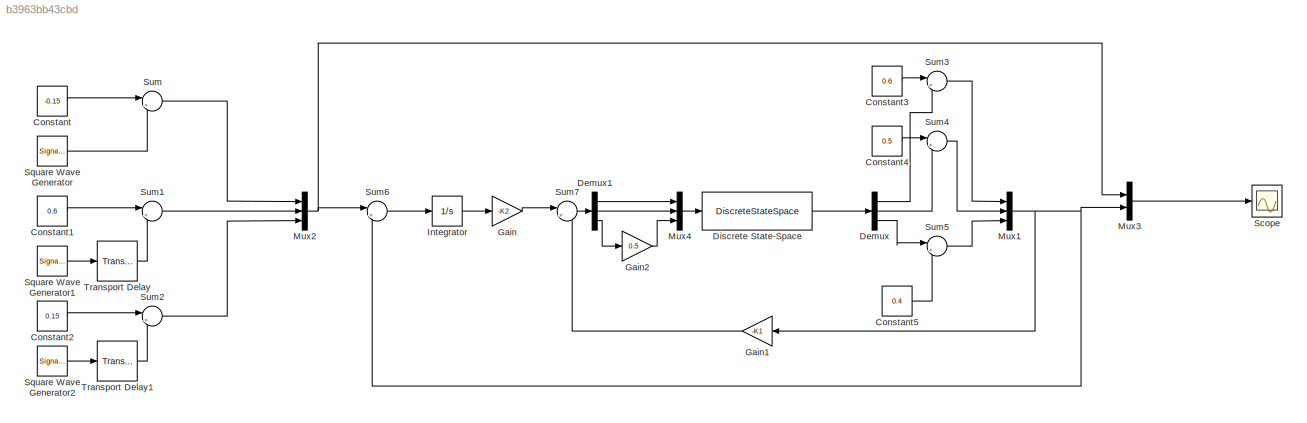
MODEL slx_b3963bb43cbd
KIND model
CONFIG AbsTol = auto
CONFIG EnableMultiTasking = off
CONFIG FixedStep = 0.1
CONFIG MaxStep = auto
CONFIG MinStep = auto
CONFIG RelTol = 1e-3
CONFIG SampleTimeConstraint = Unconstrained
CONFIG Solver = FixedStepAuto
CONFIG SolverName = FixedStepAuto
CONFIG StartTime = 0.0
CONFIG StopTime = 50
BLOCK [Constant] Constant
  Value = -0.15
BLOCK [Constant] Constant1
  Value = 0.6
BLOCK [Constant] Constant2
  Value = 0.15
BLOCK [Constant] Constant3
  Value = 0.6
BLOCK [Constant] Constant4
  Value = 0.5
BLOCK [Constant] Constant5
  Value = 0.4
BLOCK [Demux] Demux
  DisplayOption = bar
  Outputs = 3
  Ports = [1, 3]
BLOCK [Demux] Demux1
  DisplayOption = bar
  Outputs = 3
  Ports = [1, 3]
BLOCK [DiscreteStateSpace] Discrete State-Space
  A = A
  B = B
  C = C
  D = zeros(3,3)
  SampleTime = 0.1
BLOCK [Gain] Gain
  Gain = -K2
  Multiplication = Matrix(K*u)
  OutDataTypeStr = Inherit: Inherit via internal rule
  ParamDataTypeStr = Inherit: Inherit via internal rule
  SaturateOnIntegerOverflow = off
BLOCK [Gain] Gain1
  Gain = -K1
  Multiplication = Matrix(K*u)
  OutDataTypeStr = Inherit: Inherit via internal rule
  ParamDataTypeStr = Inherit: Inherit via internal rule
  SaturateOnIntegerOverflow = off
BLOCK [Gain] Gain2
  Gain = 0.5
  OutDataTypeStr = Inherit: Inherit via internal rule
  ParamDataTypeStr = Inherit: Inherit via internal rule
  SaturateOnIntegerOverflow = off
BLOCK [Integrator] Integrator
  Ports = [1, 1]
BLOCK [Mux] Mux1
  DisplayOption = bar
  Inputs = 3
  Ports = [3, 1]
BLOCK [Mux] Mux2
  DisplayOption = bar
  Inputs = 3
  Ports = [3, 1]
BLOCK [Mux] Mux3
  DisplayOption = bar
  Inputs = 2
  Ports = [2, 1]
BLOCK [Mux] Mux4
  DisplayOption = bar
  Inputs = 3
  Ports = [3, 1]
BLOCK [Scope] Scope
  Floating = off
  NumInputPorts = 1
  Ports = [1]
  ScopeSpecificationString = Simulink.scopes.TimeScopeBlockCfg('CurrentConfiguration', extmgr.ConfigurationSet(extmgr.Configuration('Core','General UI',true),extmgr.Configuration('Core','Source UI',true),extmgr.Configuration('Sources','WiredSimulink',true),extmgr.Configuration('Visuals','Time Domain',true,'SerializedDisplays',{struct('MinYLimReal','-0.3125','MaxYLimReal','0.8125','YLabelReal','','MinYLimMag','0.00000','MaxYLi...<+1451ch>
BLOCK [SignalGenerator] Square Wave Generator
  Amplitude = 0.05
  Frequency = 0.1
  Ports = [0, 1]
  WaveForm = square
BLOCK [SignalGenerator] Square Wave Generator1
  Amplitude = 0.1
  Frequency = 0.1
  Ports = [0, 1]
  WaveForm = square
BLOCK [SignalGenerator] Square Wave Generator2
  Amplitude = 0.05
  Frequency = 0.1
  Ports = [0, 1]
  WaveForm = square
BLOCK [Sum] Sum
  IconShape = round
  InputSameDT = off
  Inputs = |++
  OutDataTypeStr = Inherit: Inherit via internal rule
  Ports = [2, 1]
  SaturateOnIntegerOverflow = off
BLOCK [Sum] Sum1
  IconShape = round
  InputSameDT = off
  Inputs = |++
  OutDataTypeStr = Inherit: Inherit via internal rule
  Ports = [2, 1]
  SaturateOnIntegerOverflow = off
BLOCK [Sum] Sum2
  IconShape = round
  InputSameDT = off
  Inputs = |++
  OutDataTypeStr = Inherit: Inherit via internal rule
  Ports = [2, 1]
  SaturateOnIntegerOverflow = off
BLOCK [Sum] Sum3
  IconShape = round
  InputSameDT = off
  Inputs = |++
  OutDataTypeStr = Inherit: Inherit via internal rule
  Ports = [2, 1]
  SaturateOnIntegerOverflow = off
BLOCK [Sum] Sum4
  IconShape = round
  InputSameDT = off
  Inputs = |++
  OutDataTypeStr = Inherit: Inherit via internal rule
  Ports = [2, 1]
  SaturateOnIntegerOverflow = off
BLOCK [Sum] Sum5
  IconShape = round
  InputSameDT = off
  Inputs = |++
  OutDataTypeStr = Inherit: Inherit via internal rule
  Ports = [2, 1]
  SaturateOnIntegerOverflow = off
BLOCK [Sum] Sum6
  IconShape = round
  InputSameDT = off
  Inputs = |+-
  OutDataTypeStr = Inherit: Inherit via internal rule
  Ports = [2, 1]
  SaturateOnIntegerOverflow = off
BLOCK [Sum] Sum7
  IconShape = round
  InputSameDT = off
  Inputs = |++
  OutDataTypeStr = Inherit: Inherit via internal rule
  Ports = [2, 1]
  SaturateOnIntegerOverflow = off
BLOCK [TransportDelay] Transport Delay
  DelayTime = 2
  Ports = [1, 1]
BLOCK [TransportDelay] Transport Delay1
  DelayTime = 4
  Ports = [1, 1]
LINE Constant1:1 -> Sum1:1
LINE Constant2:1 -> Sum2:1
LINE Constant3:1 -> Sum3:1
LINE Constant4:1 -> Sum4:1
LINE Constant5:1 -> Sum5:2
LINE Constant:1 -> Sum:1
LINE Demux1:1 -> Mux4:1
LINE Demux1:2 -> Mux4:2
LINE Demux1:3 -> Gain2:1
LINE Demux:1 -> Sum3:2
LINE Demux:2 -> Sum4:2
LINE Demux:3 -> Sum5:1
LINE Discrete State-Space:1 -> Demux:1
LINE Gain1:1 -> Sum7:2
LINE Gain2:1 -> Mux4:3
LINE Gain:1 -> Sum7:1
LINE Integrator:1 -> Gain:1
NET Mux1:1 -> Gain1:1, Mux3:2, Sum6:2
NET Mux2:1 -> Mux3:1, Sum6:1
LINE Mux3:1 -> Scope:1
LINE Mux4:1 -> Discrete State-Space:1
LINE Square Wave Generator1:1 -> Transport Delay:1
LINE Square Wave Generator2:1 -> Transport Delay1:1
LINE Square Wave Generator:1 -> Sum:2
LINE Sum1:1 -> Mux2:2
LINE Sum2:1 -> Mux2:3
LINE Sum3:1 -> Mux1:1
LINE Sum4:1 -> Mux1:2
LINE Sum5:1 -> Mux1:3
LINE Sum6:1 -> Integrator:1
LINE Sum7:1 -> Demux1:1
LINE Sum:1 -> Mux2:1
LINE Transport Delay1:1 -> Sum2:2
LINE Transport Delay:1 -> Sum1:2
note: NET lines group one-source signal fan-out (src -> all destinations, sorted); 1:1 wires keep LINE
